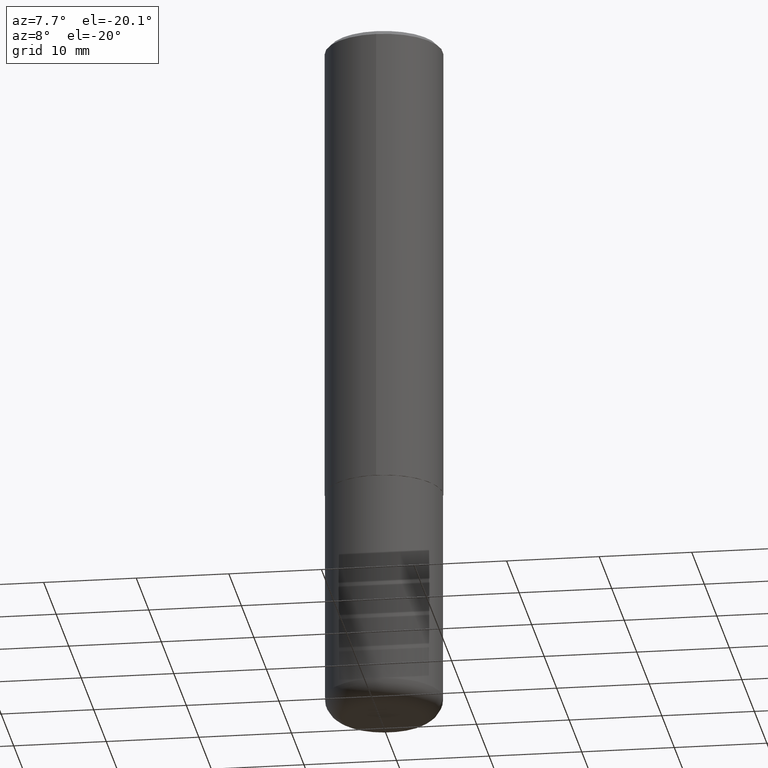
[diagram: clean part render]
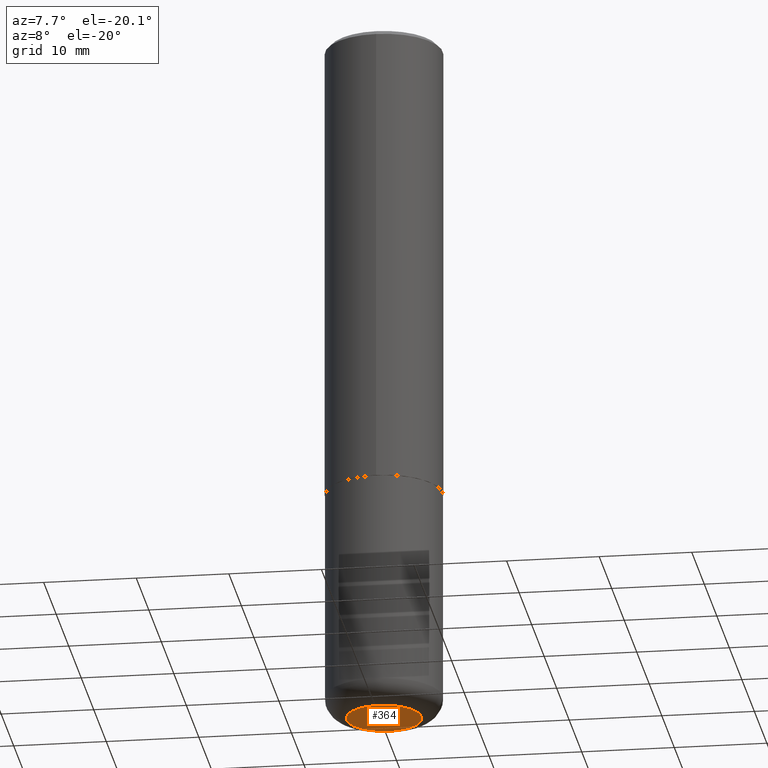
[diagram: same view with one face highlighted and labeled with its STEP entity id]
A machine part, auxiliary view. The second image highlights one B-rep face of the part: STEP entity #364.
In plain terms, the highlighted planar face has unit normal (0, -0, -1).
Its self-contained STEP definition (entity closure, byte-faithful):
#6 = CARTESIAN_POINT ( 'NONE',  ( 7.336406418555409790E-29, -1.047444401652943635E-14, -3.000000000000000444 ) ) ;
#56 = EDGE_LOOP ( 'NONE', ( #204, #336 ) ) ;
#76 = DIRECTION ( 'NONE',  ( -2.445468806185136597E-29, 3.491481338843145583E-15, 1.000000000000000000 ) ) ;
#102 = CARTESIAN_POINT ( 'NONE',  ( 7.336406418555409790E-29, -1.047444401652943635E-14, -3.000000000000000444 ) ) ;
#125 = CARTESIAN_POINT ( 'NONE',  ( 0.1600000000000000033, -1.159171804495923808E-14, -3.000000000000000444 ) ) ;
#128 = FACE_OUTER_BOUND ( 'NONE', #56, .T. ) ;
#157 = DIRECTION ( 'NONE',  ( -1.000000000000000000, 6.982962677686265922E-15, -4.876176775795935793E-29 ) ) ;
#161 = AXIS2_PLACEMENT_3D ( 'NONE', #102, #76, #391 ) ;
#166 = DIRECTION ( 'NONE',  ( 2.438088387897960049E-29, -3.491481338843145188E-15, -1.000000000000000000 ) ) ;
#170 = PLANE ( 'NONE',  #406 ) ;
#179 = EDGE_CURVE ( 'NONE', #181, #244, #300, .T. ) ;
#181 = VERTEX_POINT ( 'NONE', #125 ) ;
#189 = DIRECTION ( 'NONE',  ( -2.445468806185136597E-29, 3.491481338843145583E-15, 1.000000000000000000 ) ) ;
#204 = ORIENTED_EDGE ( 'NONE', *, *, #179, .F. ) ;
#236 = CARTESIAN_POINT ( 'NONE',  ( 7.336406418555409790E-29, -1.047444401652943635E-14, -3.000000000000000444 ) ) ;
#244 = VERTEX_POINT ( 'NONE', #256 ) ;
#256 = CARTESIAN_POINT ( 'NONE',  ( -0.1600000000000000033, -8.860714747973290413E-15, -3.000000000000000444 ) ) ;
#259 = DIRECTION ( 'NONE',  ( 1.000000000000000000, -6.982962677686259611E-15, 0.000000000000000000 ) ) ;
#271 = AXIS2_PLACEMENT_3D ( 'NONE', #6, #189, #259 ) ;
#300 = CIRCLE ( 'NONE', #271, 0.1600000000000000033 ) ;
#336 = ORIENTED_EDGE ( 'NONE', *, *, #340, .F. ) ;
#340 = EDGE_CURVE ( 'NONE', #244, #181, #365, .T. ) ;
#364 = ADVANCED_FACE ( 'NONE', ( #128 ), #170, .T. ) ;
#365 = CIRCLE ( 'NONE', #161, 0.1600000000000000033 ) ;
#391 = DIRECTION ( 'NONE',  ( 1.000000000000000000, -6.982962677686259611E-15, 0.000000000000000000 ) ) ;
#406 = AXIS2_PLACEMENT_3D ( 'NONE', #236, #166, #157 ) ;